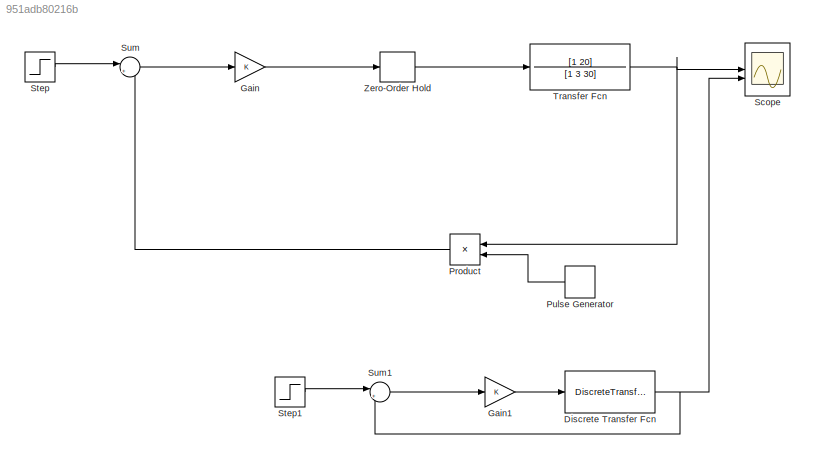
MODEL slx_951adb80216b
KIND model
CONFIG AbsTol = auto
CONFIG EnableMultiTasking = off
CONFIG FixedStep = 0.0000001
CONFIG MaxStep = auto
CONFIG MinStep = auto
CONFIG RelTol = 1e-3
CONFIG SampleTimeConstraint = Unconstrained
CONFIG SolverName = VariableStepAuto
CONFIG StartTime = 0.0
CONFIG StopTime = 1
BLOCK [DiscreteTransferFcn] Discrete Transfer Fcn
  Denominator = [1 -1.967 0.9704]
  InputPortMap = u0
  Numerator = [0.01084 -0.008867]
BLOCK [Gain] Gain
  Gain = K
BLOCK [Gain] Gain1
  Gain = K
BLOCK [Product] Product
  NameLocation = top
BLOCK [DiscretePulseGenerator] Pulse Generator
  NameLocation = top
  Period = T
  PulseType = Time based
  PulseWidth = 0.1
BLOCK [Scope] Scope
  Floating = off
  NumInputPorts = 2
  ScopeSpecificationString = Simulink.scopes.TimeScopeBlockCfg('CurrentConfiguration', extmgr.ConfigurationSet(extmgr.Configuration('Core','General UI',true),extmgr.Configuration('Core','Source UI',true),extmgr.Configuration('Sources','WiredSimulink',true),extmgr.Configuration('Visuals','Time Domain',true,'SerializedDisplays',{struct('MinYLimReal','-0.14566','MaxYLimReal','1.31097','YLabelReal','','MinYLimMag','0.00000','MaxY...<+1472ch>
BLOCK [Step] Step
  SampleTime = 0
  Time = 0
BLOCK [Step] Step1
  SampleTime = 0
  Time = 0
BLOCK [Sum] Sum
  Inputs = |+-
BLOCK [Sum] Sum1
  Inputs = |+-
BLOCK [TransferFcn] Transfer Fcn
  Denominator = [1 3 30]
  Numerator = [1 20]
BLOCK [ZeroOrderHold] Zero-Order Hold
  SampleTime = T
NET Discrete Transfer Fcn:1 -> Scope:2, Sum1:2
LINE Gain1:1 -> Discrete Transfer Fcn:1
LINE Gain:1 -> Zero-Order Hold:1
LINE Product:1 -> Sum:2
LINE Pulse Generator:1 -> Product:2
LINE Step1:1 -> Sum1:1
LINE Step:1 -> Sum:1
LINE Sum1:1 -> Gain1:1
LINE Sum:1 -> Gain:1
NET Transfer Fcn:1 -> Product:1, Scope:1
LINE Zero-Order Hold:1 -> Transfer Fcn:1
note: NET lines group one-source signal fan-out (src -> all destinations, sorted); 1:1 wires keep LINE
